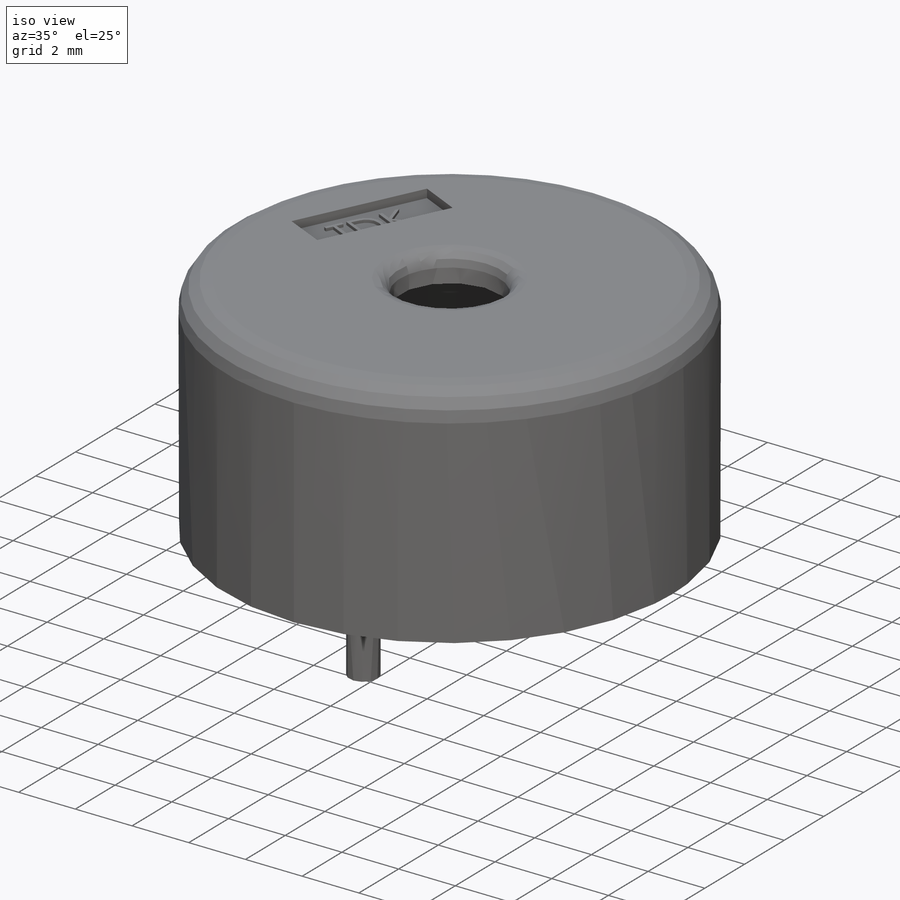
[diagram: iso view]
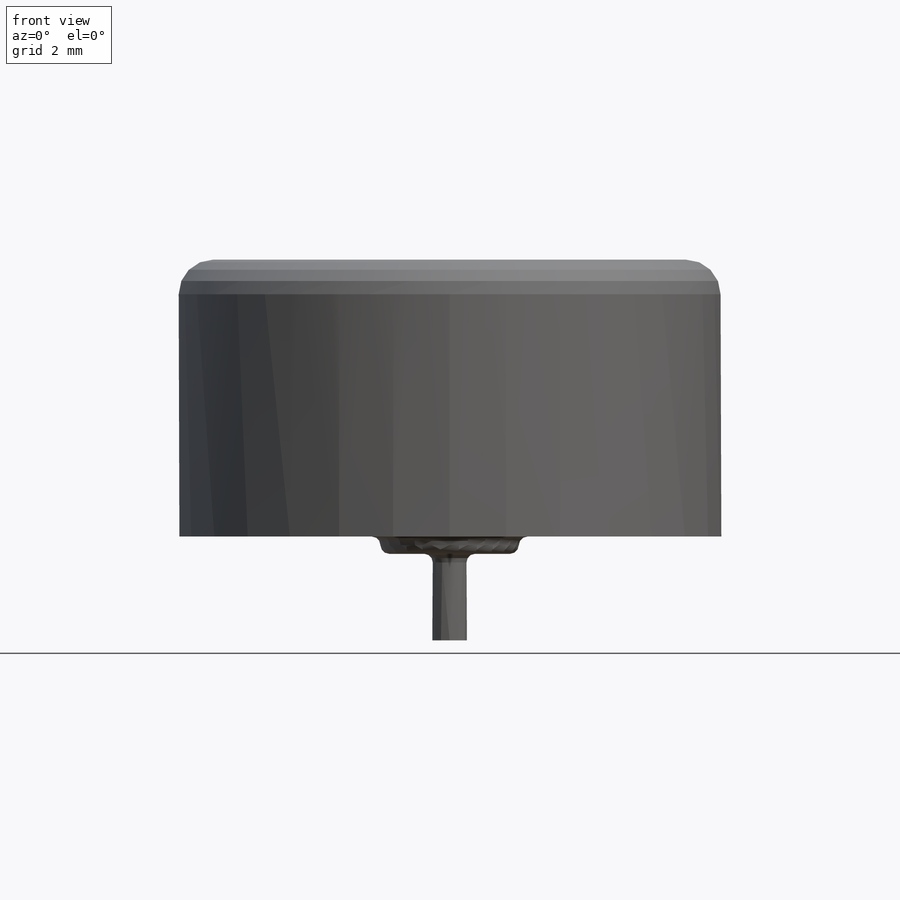
[diagram: front view]
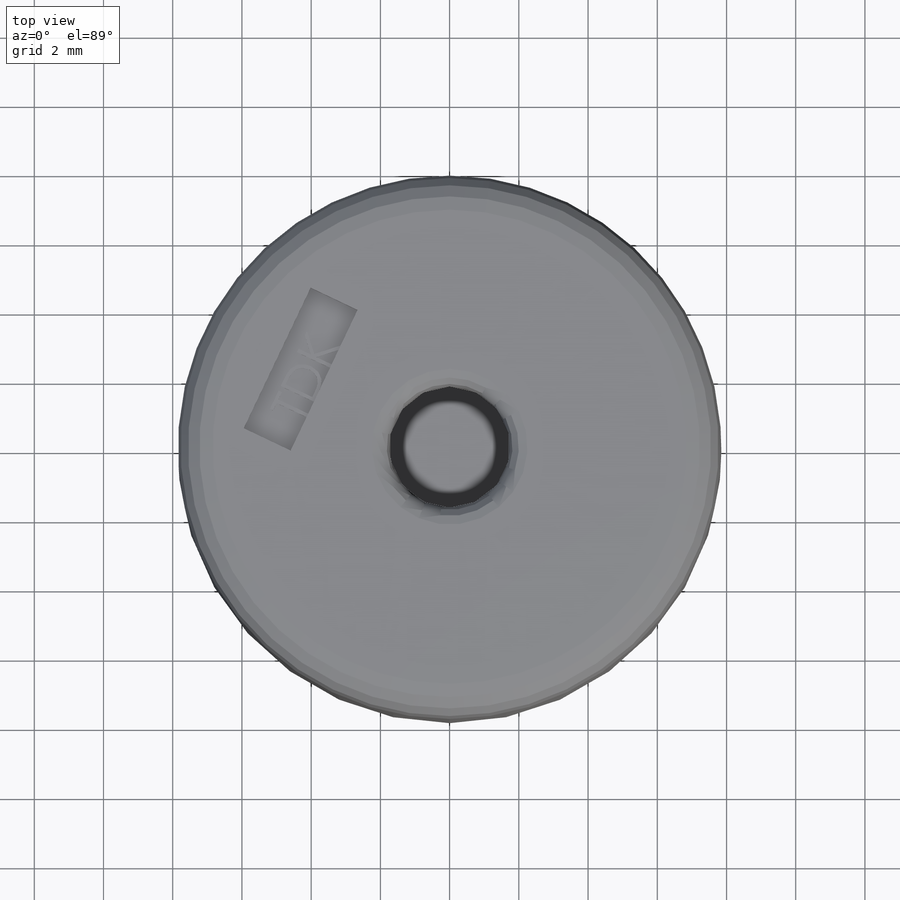
[diagram: top view]
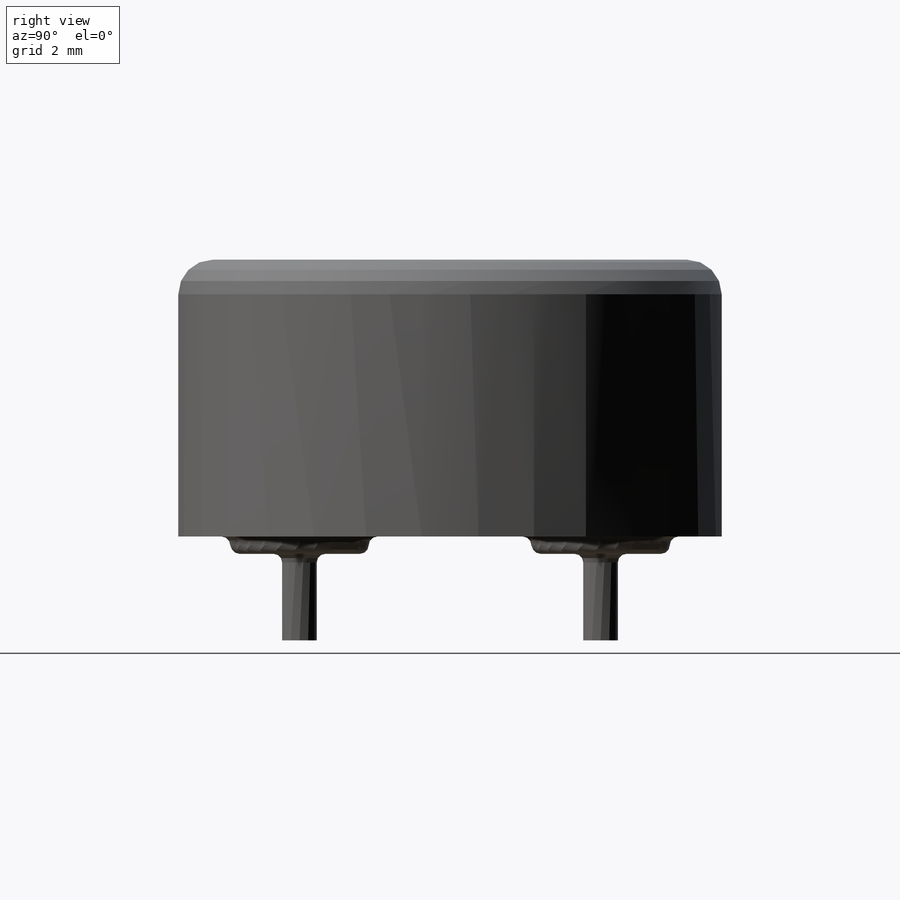
[diagram: right view]
SOLIDWORKS PART (.sldprt)
format: sldprt  version: not decoded by parser v0  size: 533,504 bytes
history: native  units: mm
features: sketch x17, extrude x8, plane x5, shell x4, cut_extrude x4, chamfer x2, sweep x2, material x1, fillet x1 (+9 scaffold rows collapsed)
feature tree (53):
  scaffold x9  (default folders/planes/origin — collapsed)
  material  "Materiale <non specificato>"
  plane  "Frontale"
  plane  "Superiore"
  plane  "Destro"
  sketch  "Schizzo1"  dims[D1=13.7mm]
  extrude  "Estrusione-Estrusione1"  Depth=3mm
  sketch  "Schizzo3"  dims[D3=1.0mm D4=1.0mm D1=4.35mm D2=4.35mm]
  extrude  "Estrusione-Estrusione2"  Depth=3mm
  sketch  "Schizzo6"  dims[D1=4.0mm D2=4.0mm]
  extrude  "Estrusione-Estrusione3"  Depth=0.5mm
  sketch  "Schizzo7"  dims[D1=0.25mm]
  extrude  "Estrusione-Estrusione4"  Depth=0.5mm
  fillet  "Raccordo1"  Radius=0.25mm
  shell  "Svuota1"  Thickness=0.5mm
  sketch  "Schizzo8"  dims[c1.D1=~11.887193mm c1.D2=~1.650999mm c2.D1=4.0mm c2.D2=13.0mm]
  extrude  "Estrusione-Estrusione5"  Depth=0.5mm
  shell  "Raccordo2"  Thickness=0.25mm
  sketch  "Schizzo9"  dims[c1.D1=~5.248574mm c1.D2=~9.546619mm c2.D1=~0.261872mm c3.D1=2.0]
  cut_extrude  "Taglio-Estrusione1"  Depth=0.5mm
  chamfer  "Smusso1"  Distance=0.5mm Angle=20deg
  chamfer  "Smusso2"  Distance=0.2mm Angle=68deg
  sketch  "Schizzo10"  dims[c1.D1=~0.926146mm c1.D2=~1.372068mm c2.D1=~0.857543mm c2.D2=~1.783689mm c3.D1=1.0mm c3.D2=1.0mm c3.D3=1.0mm c3.D4=1.0mm c3.D5=1.0mm c3.D6=1.0mm]
  cut_extrude  "Taglio-Estrusione2"  Depth=1.5mm
  sketch  "Schizzo11"  dims[D1=0.5mm D2=~4.724979mm]
  plane  "Piano2"
  sketch  "Schizzo12"  dims[D1=~4.606151mm]
  sweep  "Sweep1"
  sketch  "Schizzo13"  dims[D1=0.5mm]
  plane  "Piano3"
  sketch  "Schizzo14"  dims[D1=~2.542074mm]
  sweep  "Sweep2"
  sketch  "Schizzo15"  dims[D1=~13.33603mm]
  extrude  "Estrusione-Estrusione6"  Depth=0.1mm
  sketch  "Schizzo16"  dims[c1.D1=13.7mm c2.D1=8.0mm c2.D5=1.0mm c2.D6=1.0mm c2.D7=5.0mm]
  sketch  "Schizzo17"  dims[D1=0.0mm]
  extrude  "Estrusione-Estrusione7"  Depth=1mm
  shell  "Raccordo3"  Thickness=1mm
  sketch  "Schizzo18"  dims[D1=3.5mm]
  cut_extrude  "Taglio-Estrusione3"  Depth=3mm
  shell  "Raccordo4"  Thickness=0.5mm
  sketch  "Schizzo21"  dims[D1=1.5mm D2=4.5mm]
  cut_extrude  "Taglio-Estrusione5"  Depth=0.3mm
  sketch  "Schizzo22"
  extrude  "Estrusione-Estrusione10"  Depth=0.1mm
decode coverage: 35 of 38 modeling features carry decoded parameters
note: ~ marks probable driven/reference dimensions
note: suppression state not decoded; provenance and decode notes live in map.json
